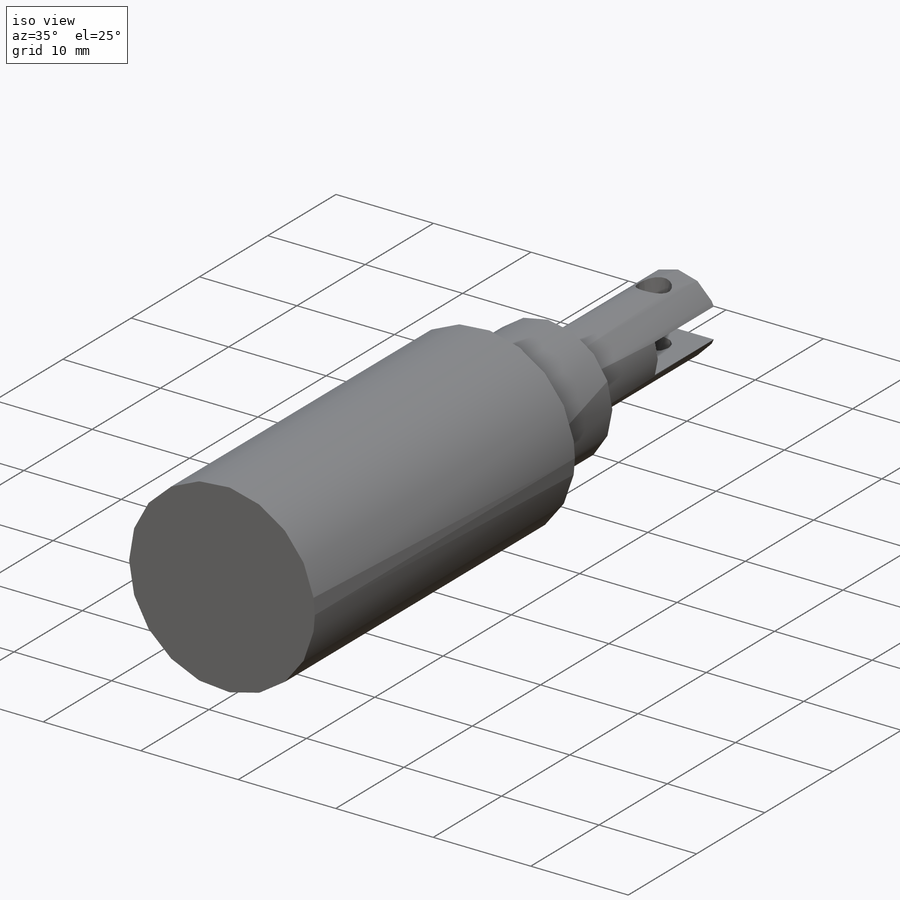
[diagram: iso view]
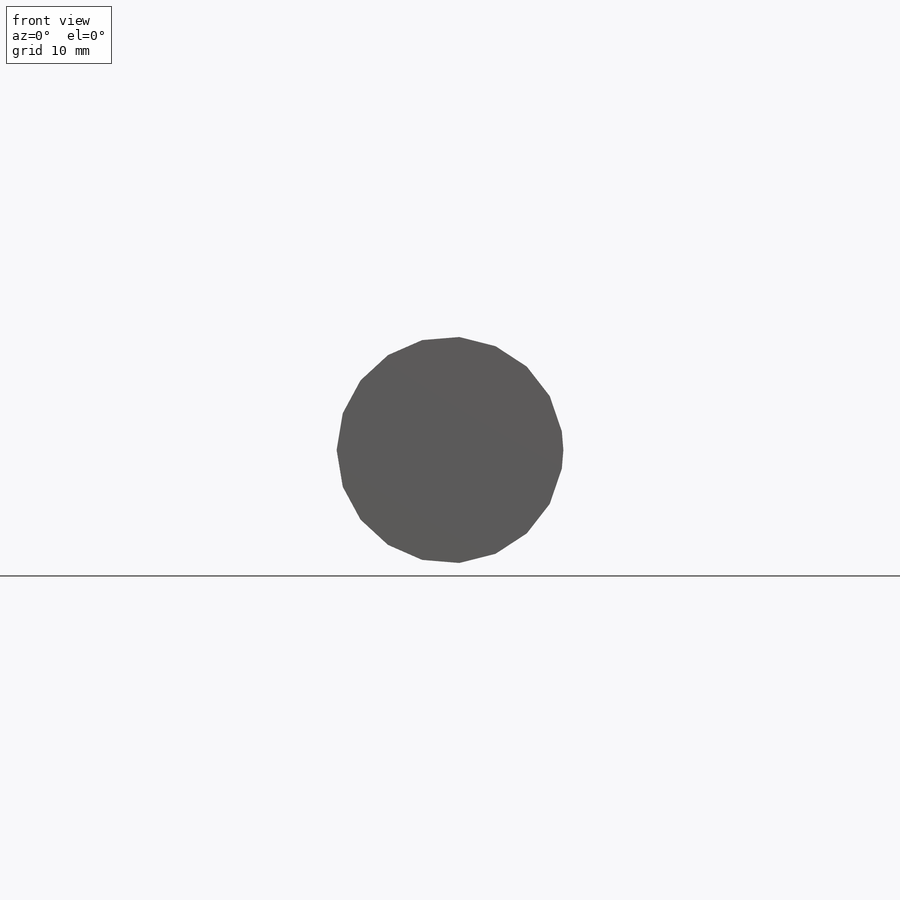
[diagram: front view]
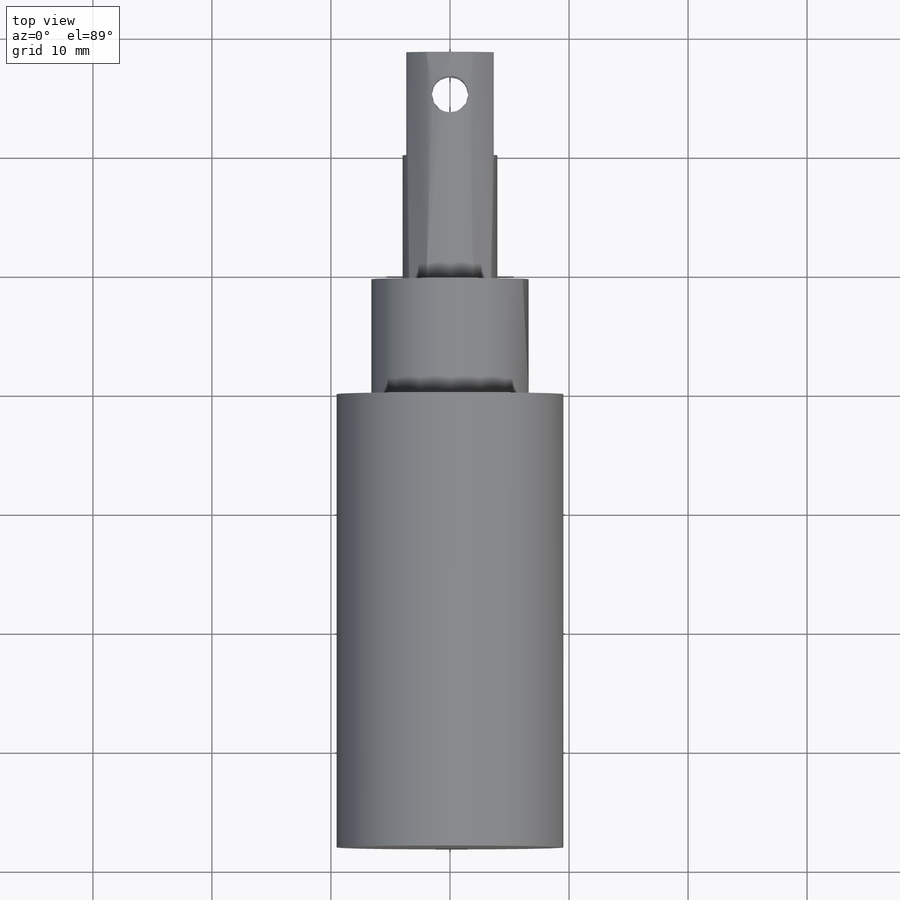
[diagram: top view]
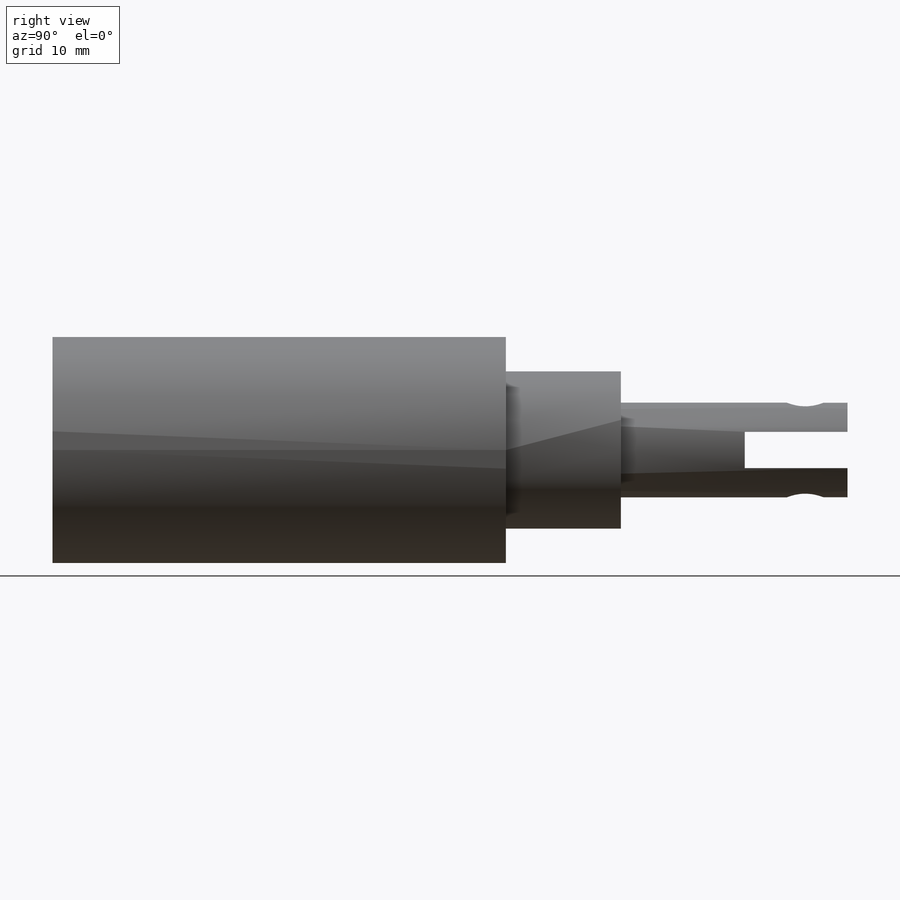
[diagram: right view]
SOLIDWORKS PART (.sldprt)
format: sldprt  version: not decoded by parser v0  size: 156,160 bytes
history: native  units: mm
features: sketch x5, extrude x3, cut_extrude x2, material x1 (+11 scaffold rows collapsed)
feature tree (22):
  scaffold x11  (default folders/planes/origin — collapsed)
  material  "Cast Carbon Steel"
  sketch  "Sketch1"  dims[D1=12.7mm]
  extrude  "Extrude1"  Depth=38.1mm
  sketch  "Sketch2"  dims[D1=~5.844611mm]
  extrude  "Extrude2"  Depth=9.652mm
  sketch  "Sketch3"  dims[D1=~4.06045mm]
  extrude  "Extrude3"  Depth=19.05mm
  sketch  "Sketch4"  dims[D1=10.16mm D2=3.048mm D3=1.524mm]
  cut_extrude  "Cut-Extrude1"  Depth=8.636mm
  sketch  "Sketch5"  dims[D1=3.556mm]
  cut_extrude  "Cut-Extrude2"  [1 undecoded]
decode coverage: 9 of 10 modeling features carry decoded parameters
note: ~ marks probable driven/reference dimensions
note: 1 parameter value undecoded
note: suppression state not decoded; provenance and decode notes live in map.json
